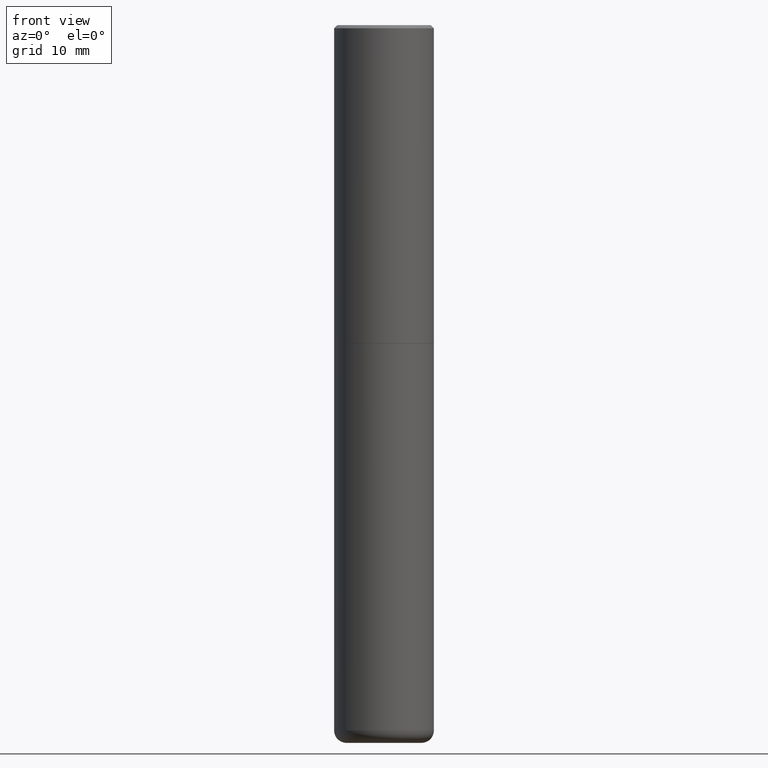
[diagram: clean part render]
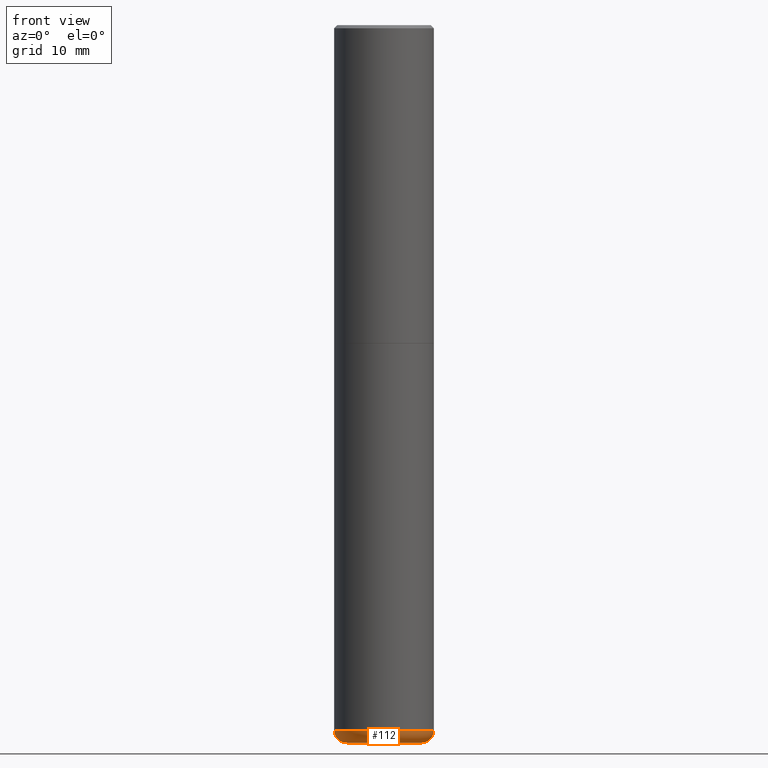
[diagram: same view with one face highlighted and labeled with its STEP entity id]
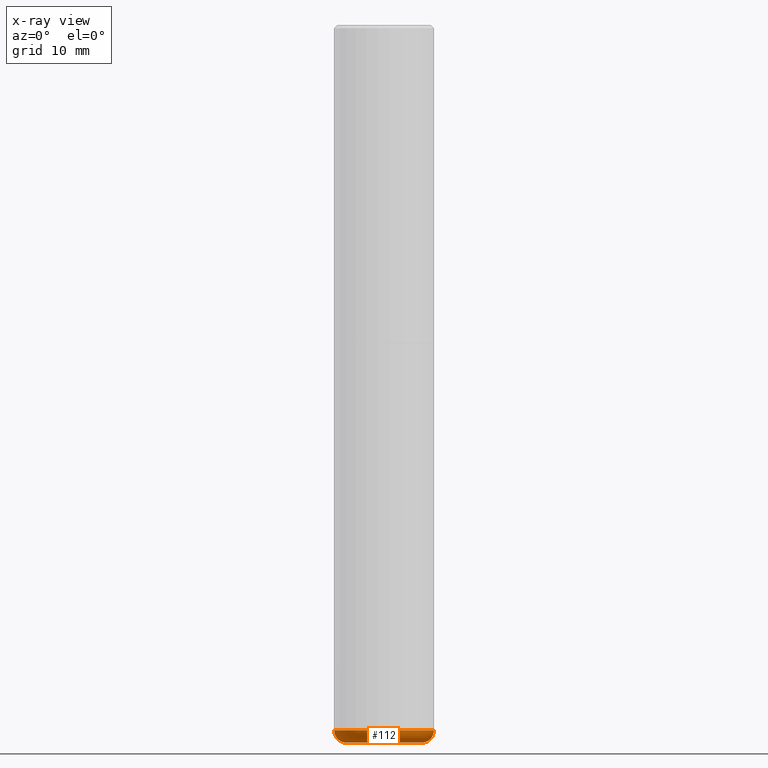
[diagram: x-ray of the same camera — body ghosted, the highlighted face saturated]
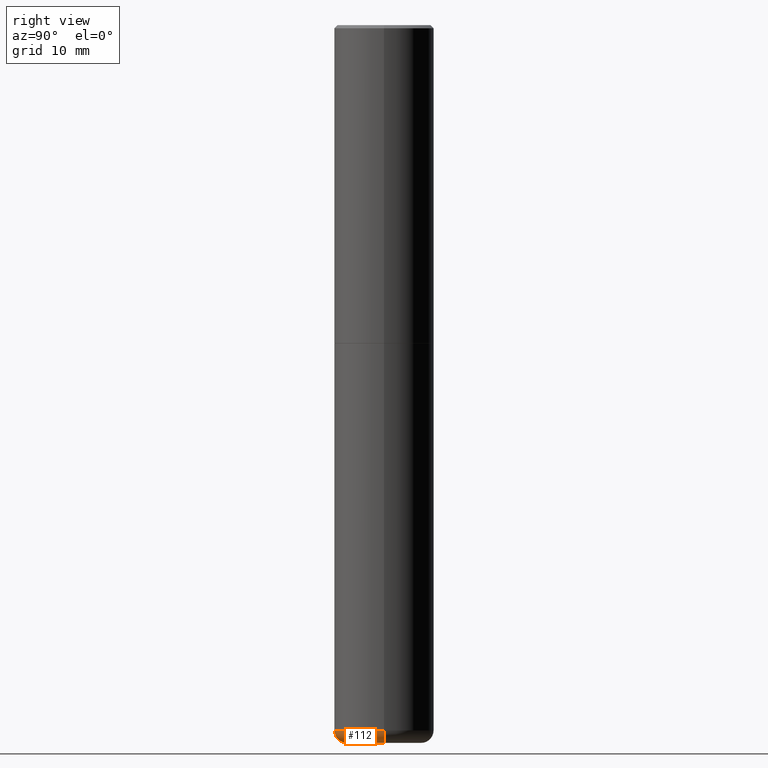
[diagram: same view with one face highlighted and labeled with its STEP entity id]
A machine part, front view. The second image highlights one B-rep face of the part: STEP entity #112.
The next image is the same camera in x-ray: the body ghosted, the highlighted face saturated — about 0% of this face is hidden behind the body in this view.
A second angle (right view) of the same face is appended — the face is thin or edge-on in the first view.
In plain terms, the highlighted toroidal blend (fillet) surface has major radius 6.0008 mm and minor (blend) radius 1.999 mm.
Its self-contained STEP definition (entity closure, byte-faithful):
#15 = EDGE_CURVE ( 'NONE', #345, #276, #158, .T. ) ;
#16 = DIRECTION ( 'NONE',  ( -2.445468806185136597E-29, 3.491481338843145583E-15, 1.000000000000000000 ) ) ;
#45 = DIRECTION ( 'NONE',  ( -1.000000000000000000, 7.105427357600999492E-15, 0.000000000000000000 ) ) ;
#76 = DIRECTION ( 'NONE',  ( 7.105427357601001859E-15, 1.000000000000000000, -3.491481338843145583E-15 ) ) ;
#94 = EDGE_LOOP ( 'NONE', ( #316, #165, #213, #382 ) ) ;
#98 = VERTEX_POINT ( 'NONE', #293 ) ;
#102 = AXIS2_PLACEMENT_3D ( 'NONE', #332, #16, #145 ) ;
#112 = ADVANCED_FACE ( 'NONE', ( #269 ), #373, .T. ) ;
#134 = DIRECTION ( 'NONE',  ( 1.000000000000000000, -6.982962677686269077E-15, 0.000000000000000000 ) ) ;
#137 = AXIS2_PLACEMENT_3D ( 'NONE', #403, #204, #366 ) ;
#145 = DIRECTION ( 'NONE',  ( 1.000000000000000000, -6.982962677686269866E-15, 0.000000000000000000 ) ) ;
#158 = CIRCLE ( 'NONE', #300, 0.2362500000000000433 ) ;
#159 = CARTESIAN_POINT ( 'NONE',  ( 0.2362500000000000155, -1.718297626098265217E-14, -4.448900000000000077 ) ) ;
#165 = ORIENTED_EDGE ( 'NONE', *, *, #15, .T. ) ;
#168 = CIRCLE ( 'NONE', #102, 0.3149500000000000077 ) ;
#180 = DIRECTION ( 'NONE',  ( -6.982962677686266711E-15, -1.000000000000000000, 3.491481338843145583E-15 ) ) ;
#185 = VERTEX_POINT ( 'NONE', #327 ) ;
#194 = DIRECTION ( 'NONE',  ( -2.445468806185136597E-29, 3.491481338843145583E-15, 1.000000000000000000 ) ) ;
#204 = DIRECTION ( 'NONE',  ( -2.445468806185136597E-29, 3.491481338843145583E-15, 1.000000000000000000 ) ) ;
#213 = ORIENTED_EDGE ( 'NONE', *, *, #391, .T. ) ;
#215 = CARTESIAN_POINT ( 'NONE',  ( -0.2362500000000000433, -1.371238533930791379E-14, -4.527599999999998737 ) ) ;
#222 = EDGE_CURVE ( 'NONE', #345, #98, #354, .T. ) ;
#250 = EDGE_CURVE ( 'NONE', #98, #185, #168, .T. ) ;
#260 = CIRCLE ( 'NONE', #338, 0.07869999999999965912 ) ;
#269 = FACE_OUTER_BOUND ( 'NONE', #94, .T. ) ;
#270 = CARTESIAN_POINT ( 'NONE',  ( 0.2362500000000000433, -1.745775584234960235E-14, -4.527599999999998737 ) ) ;
#276 = VERTEX_POINT ( 'NONE', #270 ) ;
#293 = CARTESIAN_POINT ( 'NONE',  ( -0.3149499999999998967, -1.329539698210283615E-14, -4.448900000000000077 ) ) ;
#300 = AXIS2_PLACEMENT_3D ( 'NONE', #353, #194, #134 ) ;
#316 = ORIENTED_EDGE ( 'NONE', *, *, #222, .F. ) ;
#327 = CARTESIAN_POINT ( 'NONE',  ( 0.3149499999999998967, -1.773253542371656200E-14, -4.448900000000000077 ) ) ;
#329 = CARTESIAN_POINT ( 'NONE',  ( -0.2362500000000000155, -1.385459411514603336E-14, -4.448900000000000077 ) ) ;
#332 = CARTESIAN_POINT ( 'NONE',  ( 1.087964617183705369E-28, -1.553325132837927055E-14, -4.448900000000000077 ) ) ;
#338 = AXIS2_PLACEMENT_3D ( 'NONE', #159, #180, #370 ) ;
#345 = VERTEX_POINT ( 'NONE', #215 ) ;
#353 = CARTESIAN_POINT ( 'NONE',  ( 1.107210456688382074E-28, -1.580803090974622074E-14, -4.527599999999998737 ) ) ;
#354 = CIRCLE ( 'NONE', #394, 0.07869999999999965912 ) ;
#366 = DIRECTION ( 'NONE',  ( 1.000000000000000000, -6.982962677686265133E-15, 4.883557194083112340E-29 ) ) ;
#370 = DIRECTION ( 'NONE',  ( 1.000000000000000000, -6.982962677686250933E-15, 0.000000000000000000 ) ) ;
#373 = TOROIDAL_SURFACE ( 'NONE', #137, 0.2362500000000000155, 0.07869999999999967299 ) ;
#382 = ORIENTED_EDGE ( 'NONE', *, *, #250, .F. ) ;
#391 = EDGE_CURVE ( 'NONE', #276, #185, #260, .T. ) ;
#394 = AXIS2_PLACEMENT_3D ( 'NONE', #329, #76, #45 ) ;
#403 = CARTESIAN_POINT ( 'NONE',  ( 1.087964617183705369E-28, -1.553325132837927055E-14, -4.448900000000000077 ) ) ;